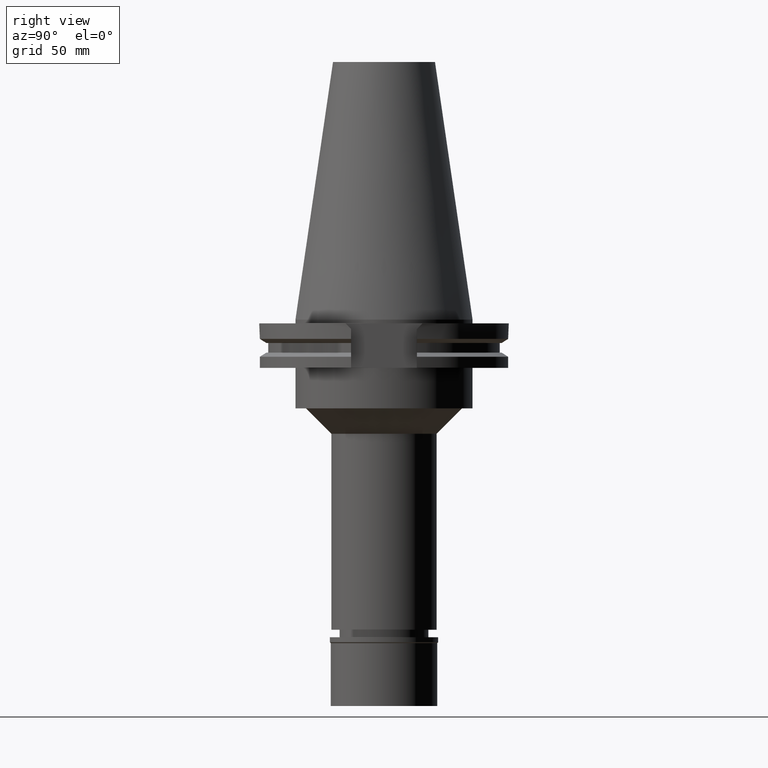
[diagram: clean part render]
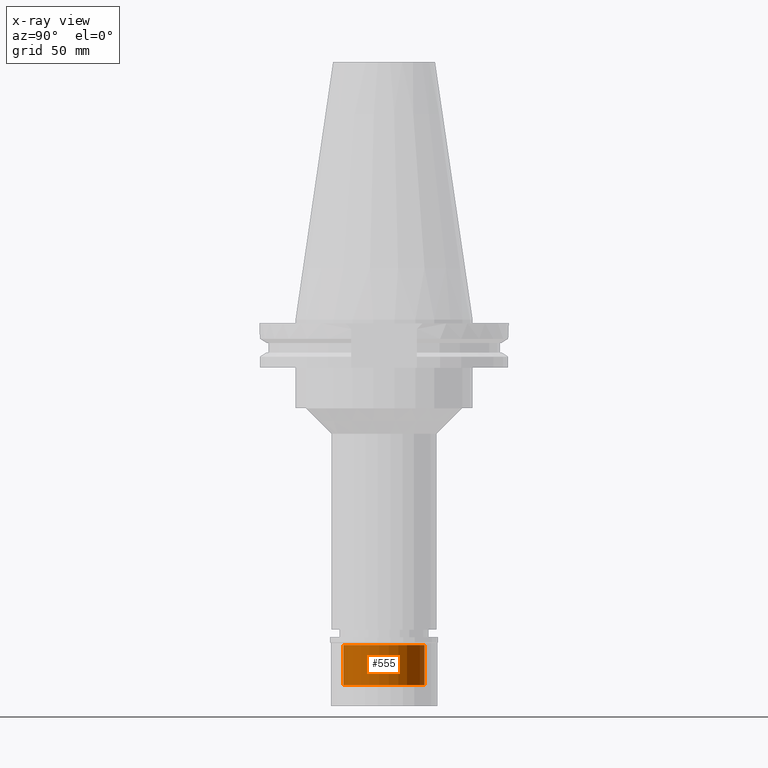
[diagram: x-ray — body ghosted, one internal face saturated and labeled with its STEP entity id]
A machine part, right view, then the same camera in x-ray: the body is ghosted and one INTERNAL B-rep face — a face not visible from any outside direction — is saturated and labeled: STEP entity #555.
In plain terms, the highlighted cylindrical surface (partial cylindrical patch) has radius 16 mm, axis along (0, 0, -1).
Its self-contained STEP definition (entity closure, byte-faithful):
#107 = CIRCLE ( 'NONE', #2585, 16.00000000000000000 ) ;
#179 = EDGE_CURVE ( 'NONE', #1307, #533, #316, .T. ) ;
#279 = CARTESIAN_POINT ( 'NONE',  ( 0.0000000000000000000, 0.0000000000000000000, -18.89999999999999858 ) ) ;
#290 = DIRECTION ( 'NONE',  ( 0.0000000000000000000, 0.0000000000000000000, 1.000000000000000000 ) ) ;
#316 = CIRCLE ( 'NONE', #2630, 16.00000000000000000 ) ;
#533 = VERTEX_POINT ( 'NONE', #2623 ) ;
#555 = ADVANCED_FACE ( 'NONE', ( #1528 ), #1312, .F. ) ;
#561 = CARTESIAN_POINT ( 'NONE',  ( 0.0000000000000000000, 16.00000000000000000, -18.89999999999999858 ) ) ;
#600 = EDGE_CURVE ( 'NONE', #1283, #1618, #107, .T. ) ;
#743 = DIRECTION ( 'NONE',  ( 0.0000000000000000000, 0.0000000000000000000, -1.000000000000000000 ) ) ;
#1115 = CARTESIAN_POINT ( 'NONE',  ( 0.0000000000000000000, -16.00000000000000000, -18.89999999999999858 ) ) ;
#1276 = AXIS2_PLACEMENT_3D ( 'NONE', #3052, #743, #2058 ) ;
#1283 = VERTEX_POINT ( 'NONE', #2716 ) ;
#1298 = DIRECTION ( 'NONE',  ( 0.0000000000000000000, 1.000000000000000000, 0.0000000000000000000 ) ) ;
#1307 = VERTEX_POINT ( 'NONE', #2146 ) ;
#1312 = CYLINDRICAL_SURFACE ( 'NONE', #1276, 16.00000000000000000 ) ;
#1432 = EDGE_LOOP ( 'NONE', ( #2544, #1693, #2527, #3134 ) ) ;
#1528 = FACE_OUTER_BOUND ( 'NONE', #1432, .T. ) ;
#1542 = DIRECTION ( 'NONE',  ( 0.0000000000000000000, 0.0000000000000000000, 1.000000000000000000 ) ) ;
#1618 = VERTEX_POINT ( 'NONE', #2629 ) ;
#1630 = DIRECTION ( 'NONE',  ( 0.0000000000000000000, 0.0000000000000000000, 1.000000000000000000 ) ) ;
#1693 = ORIENTED_EDGE ( 'NONE', *, *, #1776, .T. ) ;
#1776 = EDGE_CURVE ( 'NONE', #1618, #1307, #1923, .T. ) ;
#1845 = LINE ( 'NONE', #561, #2468 ) ;
#1923 = LINE ( 'NONE', #1115, #2738 ) ;
#2058 = DIRECTION ( 'NONE',  ( 0.0000000000000000000, -1.000000000000000000, 0.0000000000000000000 ) ) ;
#2067 = DIRECTION ( 'NONE',  ( 0.0000000000000000000, -1.000000000000000000, 0.0000000000000000000 ) ) ;
#2146 = CARTESIAN_POINT ( 'NONE',  ( 0.0000000000000000000, -16.00000000000000000, -3.100000000000000089 ) ) ;
#2468 = VECTOR ( 'NONE', #1542, 1000.000000000000000 ) ;
#2527 = ORIENTED_EDGE ( 'NONE', *, *, #179, .T. ) ;
#2544 = ORIENTED_EDGE ( 'NONE', *, *, #600, .T. ) ;
#2574 = DIRECTION ( 'NONE',  ( 0.0000000000000000000, 0.0000000000000000000, -1.000000000000000000 ) ) ;
#2585 = AXIS2_PLACEMENT_3D ( 'NONE', #279, #2574, #1298 ) ;
#2623 = CARTESIAN_POINT ( 'NONE',  ( 0.0000000000000000000, 16.00000000000000000, -3.100000000000000089 ) ) ;
#2629 = CARTESIAN_POINT ( 'NONE',  ( 0.0000000000000000000, -16.00000000000000000, -18.89999999999999858 ) ) ;
#2630 = AXIS2_PLACEMENT_3D ( 'NONE', #3165, #290, #2067 ) ;
#2716 = CARTESIAN_POINT ( 'NONE',  ( 0.0000000000000000000, 16.00000000000000000, -18.89999999999999858 ) ) ;
#2738 = VECTOR ( 'NONE', #1630, 1000.000000000000000 ) ;
#2739 = EDGE_CURVE ( 'NONE', #1283, #533, #1845, .T. ) ;
#3052 = CARTESIAN_POINT ( 'NONE',  ( 0.0000000000000000000, 0.0000000000000000000, 0.0000000000000000000 ) ) ;
#3134 = ORIENTED_EDGE ( 'NONE', *, *, #2739, .F. ) ;
#3165 = CARTESIAN_POINT ( 'NONE',  ( 0.0000000000000000000, 0.0000000000000000000, -3.100000000000000089 ) ) ;